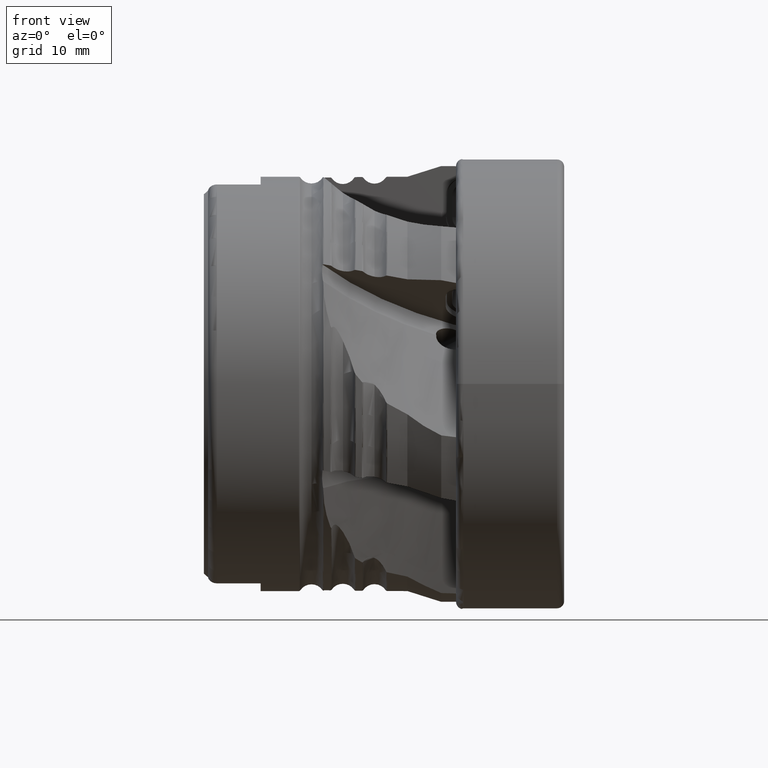
[diagram: clean part render]
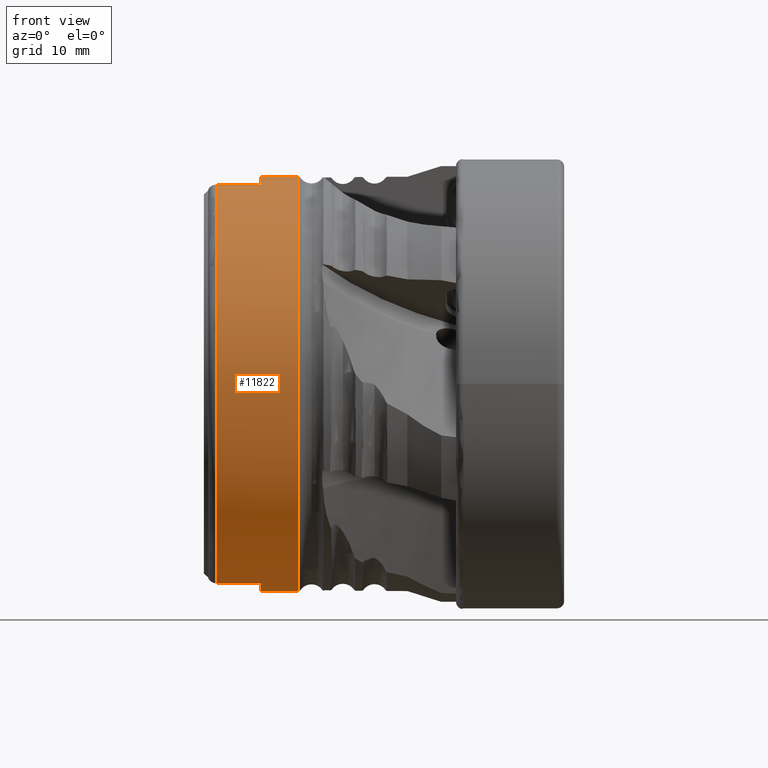
[diagram: same view with one face highlighted and labeled with its STEP entity id]
A machine part, front view. The second image highlights one B-rep face of the part: STEP entity #11822.
In plain terms, the highlighted cylindrical surface (partial cylindrical patch) has radius 23 mm, axis along (1, -0, -0).
Its self-contained STEP definition (entity closure, byte-faithful):
#633 = EDGE_CURVE ( 'NONE', #9778, #11297, #5763, .T. ) ;
#889 = CARTESIAN_POINT ( 'NONE',  ( -37.95000000000000300, 0.0000000000000000000, 0.0000000000000000000 ) ) ;
#890 = DIRECTION ( 'NONE',  ( 1.000000000000000000, -0.0000000000000000000, -0.0000000000000000000 ) ) ;
#891 = DIRECTION ( 'NONE',  ( 0.0000000000000000000, 0.0000000000000000000, -1.000000000000000000 ) ) ;
#1290 = CARTESIAN_POINT ( 'NONE',  ( -37.95000000000000300, -6.232192892913195300, 22.13955220291326900 ) ) ;
#2044 = LINE ( 'NONE', #6500, #2048 ) ;
#2048 = VECTOR ( 'NONE', #6496, 1000.000000000000000 ) ;
#2193 = LINE ( 'NONE', #7787, #2199 ) ;
#2199 = VECTOR ( 'NONE', #7788, 1000.000000000000000 ) ;
#2334 = FACE_OUTER_BOUND ( 'NONE', #10273, .T. ) ;
#2341 = CYLINDRICAL_SURFACE ( 'NONE', #9043, 22.99999999999999300 ) ;
#3764 = EDGE_CURVE ( 'NONE', #7033, #11295, #5771, .T. ) ;
#3765 = EDGE_CURVE ( 'NONE', #9778, #11295, #5772, .T. ) ;
#3766 = EDGE_CURVE ( 'NONE', #11345, #11297, #5769, .T. ) ;
#3767 = EDGE_CURVE ( 'NONE', #11345, #7040, #5774, .T. ) ;
#3768 = EDGE_CURVE ( 'NONE', #6890, #6948, #5776, .T. ) ;
#4003 = AXIS2_PLACEMENT_3D ( 'NONE', #889, #890, #891 ) ;
#4012 = AXIS2_PLACEMENT_3D ( 'NONE', #10624, #10625, #10626 ) ;
#4013 = AXIS2_PLACEMENT_3D ( 'NONE', #10629, #10630, #10631 ) ;
#4014 = AXIS2_PLACEMENT_3D ( 'NONE', #10634, #10635, #10636 ) ;
#5042 = DIRECTION ( 'NONE',  ( 0.0000000000000000000, 0.0000000000000000000, -1.000000000000000000 ) ) ;
#5044 = CARTESIAN_POINT ( 'NONE',  ( 0.0000000000000000000, 0.0000000000000000000, 0.0000000000000000000 ) ) ;
#5045 = DIRECTION ( 'NONE',  ( 1.000000000000000000, -0.0000000000000000000, -0.0000000000000000000 ) ) ;
#5763 = CIRCLE ( 'NONE', #4003, 22.99999999999999600 ) ;
#5769 = LINE ( 'NONE', #10627, #5775 ) ;
#5771 = CIRCLE ( 'NONE', #4012, 22.99999999999999300 ) ;
#5772 = LINE ( 'NONE', #10618, #5773 ) ;
#5773 = VECTOR ( 'NONE', #10620, 1000.000000000000000 ) ;
#5774 = CIRCLE ( 'NONE', #4013, 22.99999999999999300 ) ;
#5775 = VECTOR ( 'NONE', #10628, 1000.000000000000000 ) ;
#5776 = CIRCLE ( 'NONE', #4014, 22.99999999999999300 ) ;
#6496 = DIRECTION ( 'NONE',  ( 1.000000000000000000, -0.0000000000000000000, -0.0000000000000000000 ) ) ;
#6500 = CARTESIAN_POINT ( 'NONE',  ( 0.0000000000000000000, 0.0000000000000000000, -22.99999999999999300 ) ) ;
#6890 = VERTEX_POINT ( 'NONE', #7255 ) ;
#6948 = VERTEX_POINT ( 'NONE', #7281 ) ;
#7033 = VERTEX_POINT ( 'NONE', #7302 ) ;
#7040 = VERTEX_POINT ( 'NONE', #7300 ) ;
#7255 = CARTESIAN_POINT ( 'NONE',  ( -28.85978721798716200, 2.816687638038911600E-015, 22.99999999999999300 ) ) ;
#7281 = CARTESIAN_POINT ( 'NONE',  ( -28.85978721798716200, 0.0000000000000000000, -22.99999999999999300 ) ) ;
#7300 = CARTESIAN_POINT ( 'NONE',  ( -33.10000000000000100, 0.0000000000000000000, -22.99999999999999300 ) ) ;
#7302 = CARTESIAN_POINT ( 'NONE',  ( -33.10000000000000100, 2.816687638038911600E-015, 22.99999999999999300 ) ) ;
#7787 = CARTESIAN_POINT ( 'NONE',  ( 0.0000000000000000000, 2.816687638038911600E-015, 22.99999999999999300 ) ) ;
#7788 = DIRECTION ( 'NONE',  ( 1.000000000000000000, -0.0000000000000000000, -0.0000000000000000000 ) ) ;
#8171 = CARTESIAN_POINT ( 'NONE',  ( -33.10000000000000100, -6.232192892913195300, 22.13955220291326900 ) ) ;
#8175 = CARTESIAN_POINT ( 'NONE',  ( -37.95000000000000300, -6.232192893443060400, -22.13955220276411900 ) ) ;
#8190 = CARTESIAN_POINT ( 'NONE',  ( -33.10000000000000100, -6.232192893443056800, -22.13955220276412200 ) ) ;
#9043 = AXIS2_PLACEMENT_3D ( 'NONE', #5044, #5045, #5042 ) ;
#9778 = VERTEX_POINT ( 'NONE', #1290 ) ;
#10232 = ORIENTED_EDGE ( 'NONE', *, *, #10971, .T. ) ;
#10273 = EDGE_LOOP ( 'NONE', ( #10487, #10488, #10489, #10491, #10492, #10495, #10232, #10454 ) ) ;
#10454 = ORIENTED_EDGE ( 'NONE', *, *, #3768, .F. ) ;
#10487 = ORIENTED_EDGE ( 'NONE', *, *, #11168, .F. ) ;
#10488 = ORIENTED_EDGE ( 'NONE', *, *, #3764, .T. ) ;
#10489 = ORIENTED_EDGE ( 'NONE', *, *, #3765, .F. ) ;
#10491 = ORIENTED_EDGE ( 'NONE', *, *, #633, .T. ) ;
#10492 = ORIENTED_EDGE ( 'NONE', *, *, #3766, .F. ) ;
#10495 = ORIENTED_EDGE ( 'NONE', *, *, #3767, .T. ) ;
#10618 = CARTESIAN_POINT ( 'NONE',  ( 0.0000000000000000000, -6.232192892913195300, 22.13955220291326900 ) ) ;
#10620 = DIRECTION ( 'NONE',  ( 1.000000000000000000, -0.0000000000000000000, -0.0000000000000000000 ) ) ;
#10624 = CARTESIAN_POINT ( 'NONE',  ( -33.10000000000000100, 0.0000000000000000000, 0.0000000000000000000 ) ) ;
#10625 = DIRECTION ( 'NONE',  ( 1.000000000000000000, -0.0000000000000000000, 0.0000000000000000000 ) ) ;
#10626 = DIRECTION ( 'NONE',  ( 0.0000000000000000000, 0.0000000000000000000, 1.000000000000000000 ) ) ;
#10627 = CARTESIAN_POINT ( 'NONE',  ( 0.0000000000000000000, -6.232192893443060400, -22.13955220276411900 ) ) ;
#10628 = DIRECTION ( 'NONE',  ( -1.000000000000000000, 0.0000000000000000000, 0.0000000000000000000 ) ) ;
#10629 = CARTESIAN_POINT ( 'NONE',  ( -33.10000000000000100, 0.0000000000000000000, 0.0000000000000000000 ) ) ;
#10630 = DIRECTION ( 'NONE',  ( 1.000000000000000000, -0.0000000000000000000, 0.0000000000000000000 ) ) ;
#10631 = DIRECTION ( 'NONE',  ( 0.0000000000000000000, 5.329070518200750600E-015, 1.000000000000000000 ) ) ;
#10634 = CARTESIAN_POINT ( 'NONE',  ( -28.85978721798716200, 0.0000000000000000000, 0.0000000000000000000 ) ) ;
#10635 = DIRECTION ( 'NONE',  ( 1.000000000000000000, -0.0000000000000000000, -0.0000000000000000000 ) ) ;
#10636 = DIRECTION ( 'NONE',  ( 0.0000000000000000000, 0.0000000000000000000, -1.000000000000000000 ) ) ;
#10971 = EDGE_CURVE ( 'NONE', #7040, #6948, #2044, .T. ) ;
#11168 = EDGE_CURVE ( 'NONE', #7033, #6890, #2193, .T. ) ;
#11295 = VERTEX_POINT ( 'NONE', #8171 ) ;
#11297 = VERTEX_POINT ( 'NONE', #8175 ) ;
#11345 = VERTEX_POINT ( 'NONE', #8190 ) ;
#11822 = ADVANCED_FACE ( 'NONE', ( #2334 ), #2341, .T. ) ;